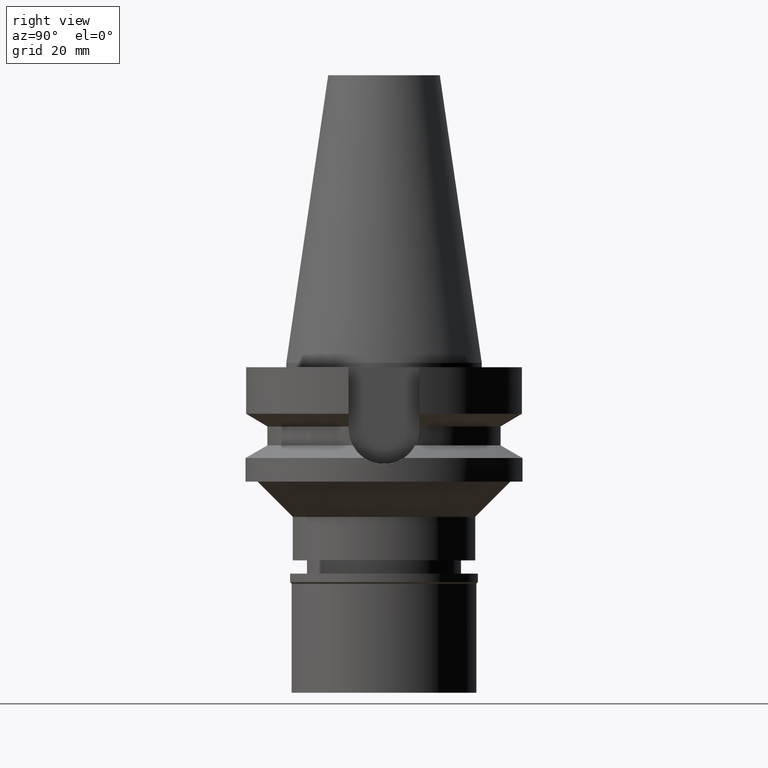
[diagram: clean part render]
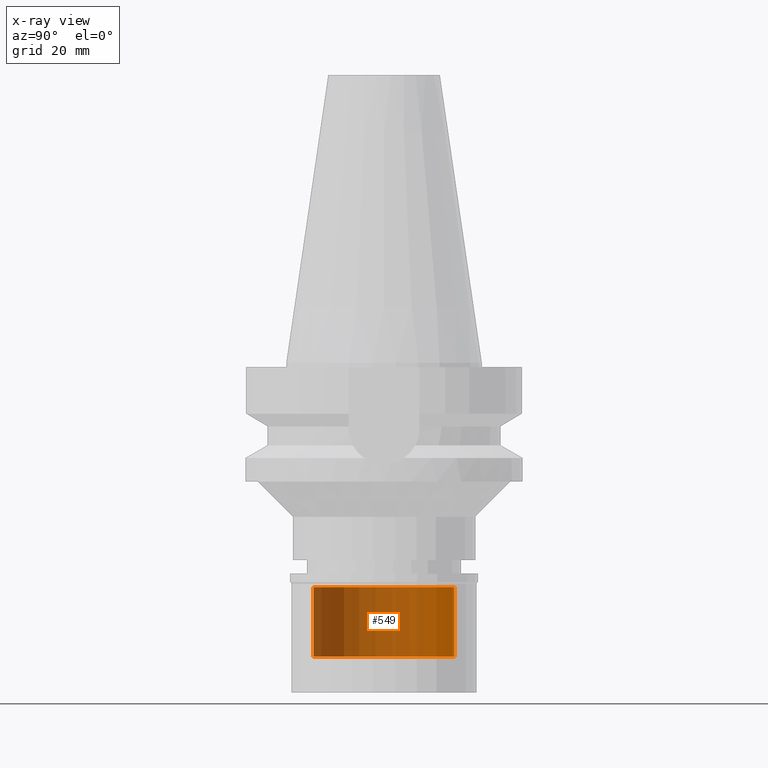
[diagram: x-ray — body ghosted, one internal face saturated and labeled with its STEP entity id]
A machine part, right view, then the same camera in x-ray: the body is ghosted and one INTERNAL B-rep face — a face not visible from any outside direction — is saturated and labeled: STEP entity #549.
In plain terms, the highlighted cylindrical surface (partial cylindrical patch) has radius 16 mm, axis along (0, 0, -1).
Its self-contained STEP definition (entity closure, byte-faithful):
#50 = ORIENTED_EDGE ( 'NONE', *, *, #993, .T. ) ;
#64 = VERTEX_POINT ( 'NONE', #2522 ) ;
#137 = ORIENTED_EDGE ( 'NONE', *, *, #2382, .F. ) ;
#153 = CARTESIAN_POINT ( 'NONE',  ( 0.0000000000000000000, 0.0000000000000000000, 0.0000000000000000000 ) ) ;
#342 = ORIENTED_EDGE ( 'NONE', *, *, #903, .T. ) ;
#381 = DIRECTION ( 'NONE',  ( 0.0000000000000000000, 0.0000000000000000000, 1.000000000000000000 ) ) ;
#389 = CIRCLE ( 'NONE', #883, 16.00000000000000000 ) ;
#397 = DIRECTION ( 'NONE',  ( 0.0000000000000000000, 0.0000000000000000000, -1.000000000000000000 ) ) ;
#414 = FACE_OUTER_BOUND ( 'NONE', #1050, .T. ) ;
#437 = AXIS2_PLACEMENT_3D ( 'NONE', #2983, #813, #940 ) ;
#500 = CARTESIAN_POINT ( 'NONE',  ( 0.0000000000000000000, -16.00000000000000000, -18.89999999999999858 ) ) ;
#527 = EDGE_CURVE ( 'NONE', #64, #784, #389, .T. ) ;
#549 = ADVANCED_FACE ( 'NONE', ( #414 ), #908, .F. ) ;
#579 = AXIS2_PLACEMENT_3D ( 'NONE', #153, #397, #1333 ) ;
#630 = VERTEX_POINT ( 'NONE', #1205 ) ;
#637 = ORIENTED_EDGE ( 'NONE', *, *, #527, .T. ) ;
#652 = CARTESIAN_POINT ( 'NONE',  ( 0.0000000000000000000, -16.00000000000000000, -3.100000000000000089 ) ) ;
#784 = VERTEX_POINT ( 'NONE', #652 ) ;
#809 = VERTEX_POINT ( 'NONE', #1829 ) ;
#813 = DIRECTION ( 'NONE',  ( 0.0000000000000000000, 0.0000000000000000000, -1.000000000000000000 ) ) ;
#883 = AXIS2_PLACEMENT_3D ( 'NONE', #2775, #381, #1599 ) ;
#903 = EDGE_CURVE ( 'NONE', #630, #809, #2399, .T. ) ;
#908 = CYLINDRICAL_SURFACE ( 'NONE', #579, 16.00000000000000000 ) ;
#940 = DIRECTION ( 'NONE',  ( 0.0000000000000000000, -1.000000000000000000, 0.0000000000000000000 ) ) ;
#993 = EDGE_CURVE ( 'NONE', #809, #64, #1658, .T. ) ;
#1050 = EDGE_LOOP ( 'NONE', ( #637, #137, #342, #50 ) ) ;
#1205 = CARTESIAN_POINT ( 'NONE',  ( 0.0000000000000000000, -16.00000000000000000, -18.89999999999999858 ) ) ;
#1333 = DIRECTION ( 'NONE',  ( 0.0000000000000000000, -1.000000000000000000, 0.0000000000000000000 ) ) ;
#1558 = VECTOR ( 'NONE', #2867, 1000.000000000000000 ) ;
#1599 = DIRECTION ( 'NONE',  ( 0.0000000000000000000, 1.000000000000000000, 0.0000000000000000000 ) ) ;
#1658 = LINE ( 'NONE', #2429, #1558 ) ;
#1829 = CARTESIAN_POINT ( 'NONE',  ( 0.0000000000000000000, 16.00000000000000000, -18.89999999999999858 ) ) ;
#1888 = LINE ( 'NONE', #500, #2078 ) ;
#2078 = VECTOR ( 'NONE', #2367, 1000.000000000000000 ) ;
#2367 = DIRECTION ( 'NONE',  ( 0.0000000000000000000, 0.0000000000000000000, 1.000000000000000000 ) ) ;
#2382 = EDGE_CURVE ( 'NONE', #630, #784, #1888, .T. ) ;
#2399 = CIRCLE ( 'NONE', #437, 16.00000000000000000 ) ;
#2429 = CARTESIAN_POINT ( 'NONE',  ( 0.0000000000000000000, 16.00000000000000000, -18.89999999999999858 ) ) ;
#2522 = CARTESIAN_POINT ( 'NONE',  ( 0.0000000000000000000, 16.00000000000000000, -3.100000000000000089 ) ) ;
#2775 = CARTESIAN_POINT ( 'NONE',  ( 0.0000000000000000000, 0.0000000000000000000, -3.100000000000000089 ) ) ;
#2867 = DIRECTION ( 'NONE',  ( 0.0000000000000000000, 0.0000000000000000000, 1.000000000000000000 ) ) ;
#2983 = CARTESIAN_POINT ( 'NONE',  ( 0.0000000000000000000, 0.0000000000000000000, -18.89999999999999858 ) ) ;